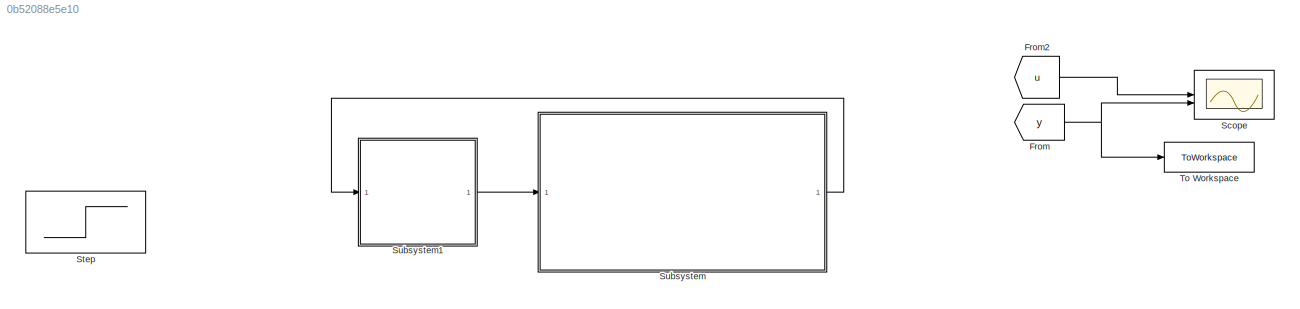
MODEL slx_0b52088e5e10
KIND model
CONFIG AbsTol = auto
CONFIG EnableMultiTasking = off
CONFIG FixedStep = 0.001
CONFIG MaxStep = auto
CONFIG MinStep = auto
CONFIG RelTol = 1e-3
CONFIG SampleTimeConstraint = Unconstrained
CONFIG SolverName = ode1
CONFIG StartTime = 0.0
CONFIG StopTime = 10.0
BLOCK [From] From
  GotoTag = y
  TagVisibility = global
BLOCK [From] From2
  GotoTag = u
  NameLocation = right
  TagVisibility = global
BLOCK [Scope] Scope
  Floating = off
  NumInputPorts = 2
  ScopeSpecificationString = Simulink.scopes.TimeScopeBlockCfg('CurrentConfiguration', extmgr.ConfigurationSet(extmgr.Configuration('Core','General UI',true),extmgr.Configuration('Core','Source UI',true),extmgr.Configuration('Sources','WiredSimulink',true),extmgr.Configuration('Visuals','Time Domain',true,'SerializedDisplays',{struct('MinYLimReal','-162.53885','MaxYLimReal','29.51628','YLabelReal','','MinYLimMag','0.00000','M...<+2122ch>
BLOCK [Step] Step
  SampleTime = 0
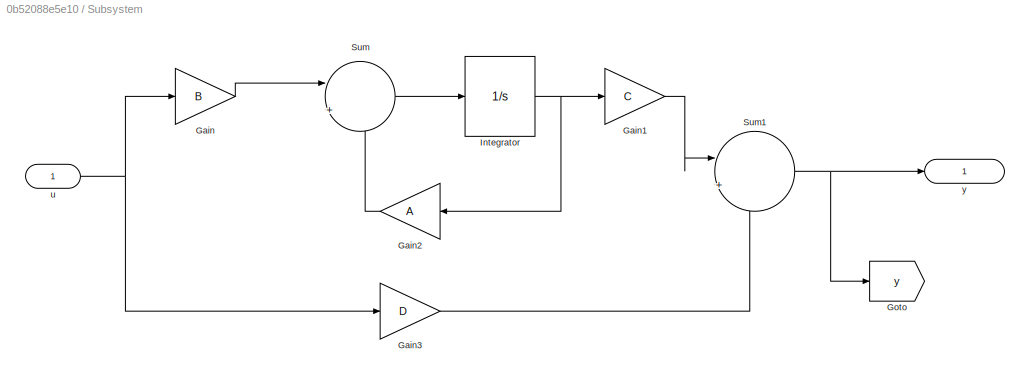
BLOCK [SubSystem] Subsystem
BLOCK [Gain] Subsystem/Gain
  Gain = B
  Multiplication = Matrix(K*u)
BLOCK [Gain] Subsystem/Gain1
  Gain = C
  Multiplication = Matrix(K*u)
BLOCK [Gain] Subsystem/Gain2
  Gain = A
  Multiplication = Matrix(K*u)
  NameLocation = top
BLOCK [Gain] Subsystem/Gain3
  Gain = D
  Multiplication = Matrix(K*u)
BLOCK [Goto] Subsystem/Goto
  GotoTag = y
  TagVisibility = global
BLOCK [Integrator] Subsystem/Integrator
  InitialCondition = [1,2,3]
BLOCK [Sum] Subsystem/Sum
  Inputs = |++
BLOCK [Sum] Subsystem/Sum1
  Inputs = |++
BLOCK [Inport] Subsystem/u
BLOCK [Outport] Subsystem/y
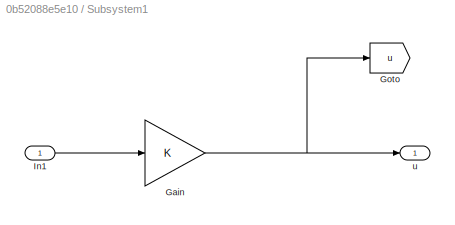
BLOCK [SubSystem] Subsystem1
BLOCK [Gain] Subsystem1/Gain
  Gain = K
  Multiplication = Matrix(K*u)
BLOCK [Goto] Subsystem1/Goto
  GotoTag = u
  TagVisibility = global
BLOCK [Inport] Subsystem1/In1
BLOCK [Outport] Subsystem1/u
BLOCK [ToWorkspace] To Workspace
  FixptAsFi = on
  MaxDataPoints = inf
  SampleTime = -1
  SaveFormat = Structure With Time
  VariableName = y
LINE From2:1 -> Scope:1
NET From:1 -> Scope:2, To Workspace:1
LINE Subsystem/Gain1:1 -> Subsystem/Sum1:1
LINE Subsystem/Gain2:1 -> Subsystem/Sum:2
LINE Subsystem/Gain3:1 -> Subsystem/Sum1:2
LINE Subsystem/Gain:1 -> Subsystem/Sum:1
NET Subsystem/Integrator:1 -> Subsystem/Gain1:1, Subsystem/Gain2:1
NET Subsystem/Sum1:1 -> Subsystem/Goto:1, Subsystem/y:1
LINE Subsystem/Sum:1 -> Subsystem/Integrator:1
NET Subsystem/u:1 -> Subsystem/Gain3:1, Subsystem/Gain:1
NET Subsystem1/Gain:1 -> Subsystem1/Goto:1, Subsystem1/u:1
LINE Subsystem1/In1:1 -> Subsystem1/Gain:1
LINE Subsystem1:1 -> Subsystem:1
LINE Subsystem:1 -> Subsystem1:1
note: NET lines group one-source signal fan-out (src -> all destinations, sorted); 1:1 wires keep LINE
